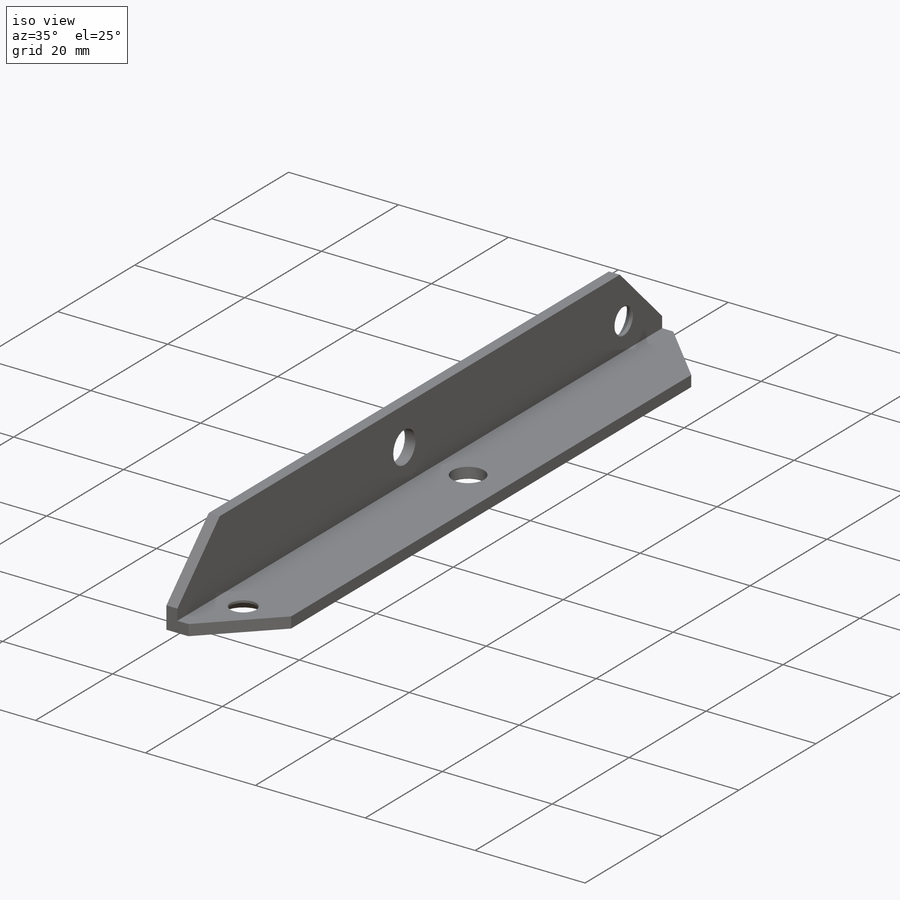
[diagram: iso view]
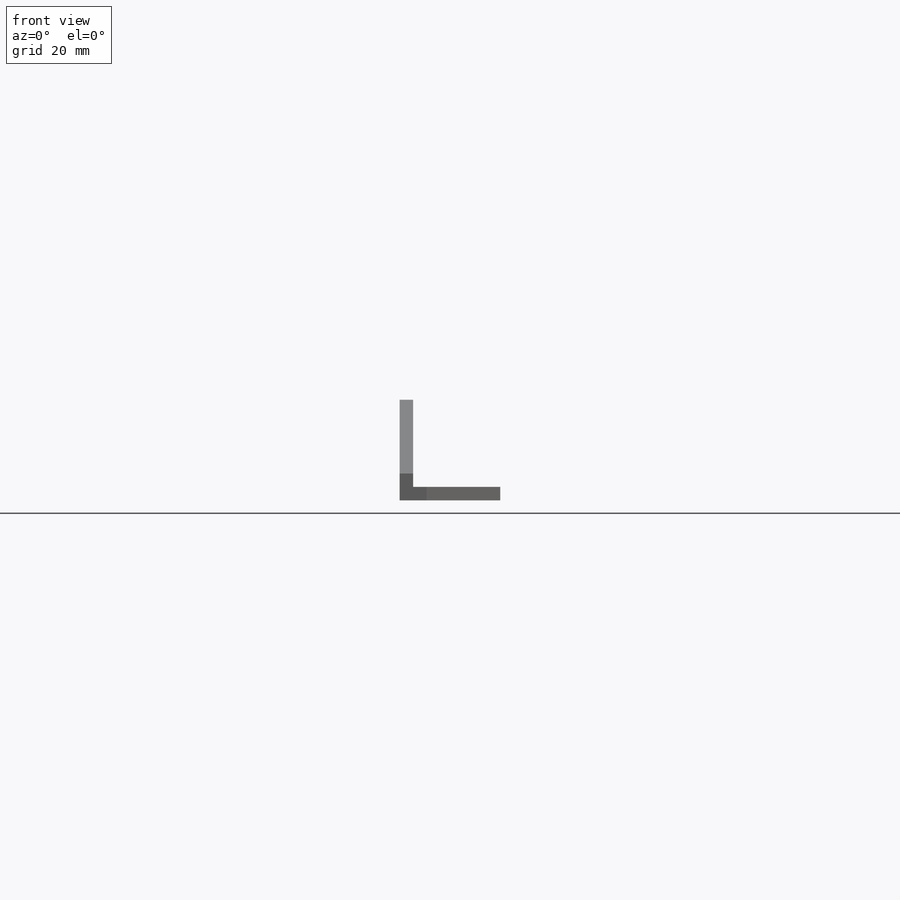
[diagram: front view]
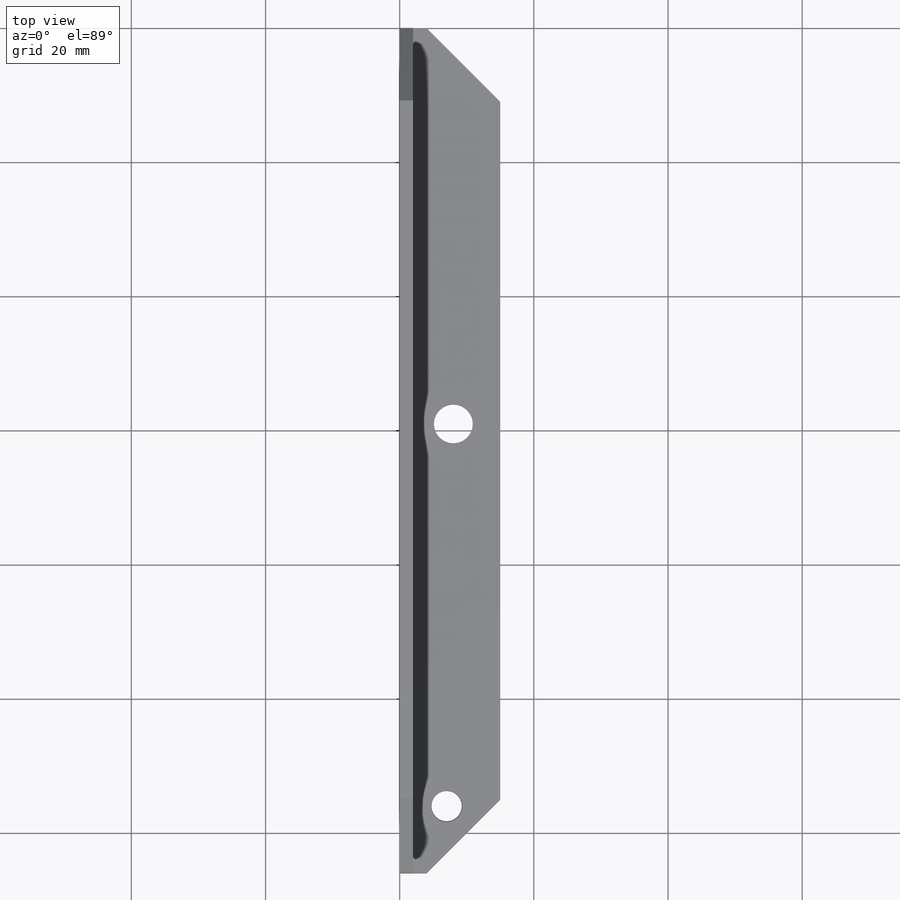
[diagram: top view]
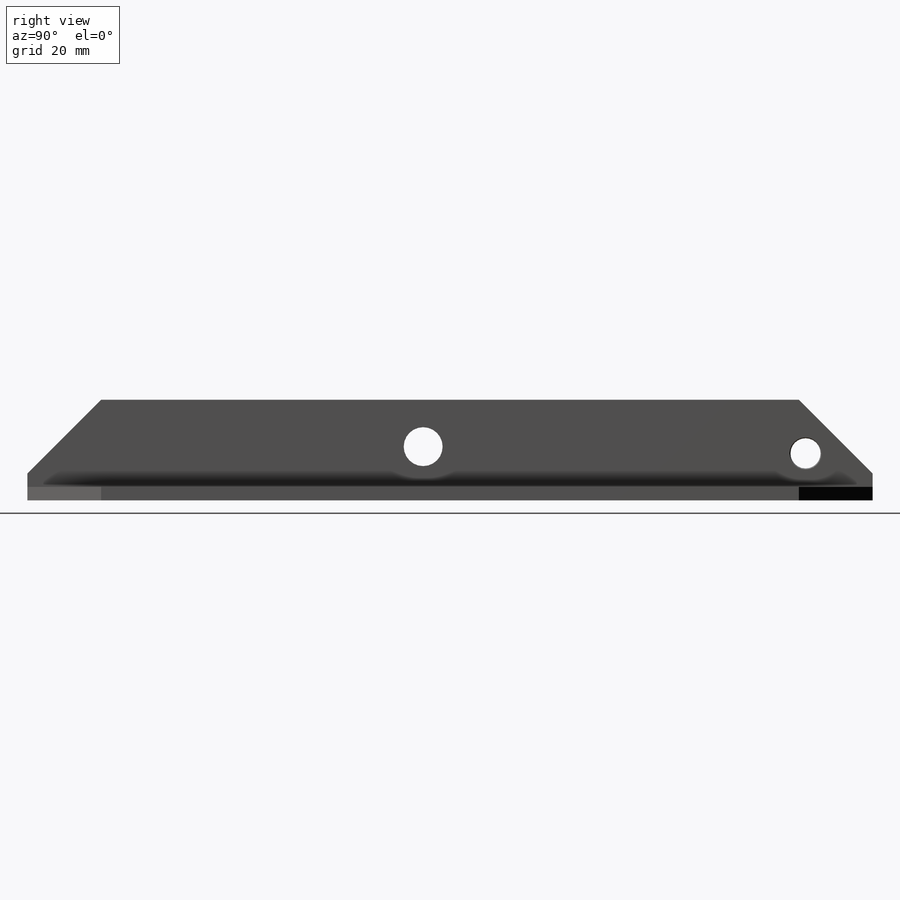
[diagram: right view]
SOLIDWORKS PART (.sldprt)
format: sldprt  version: not decoded by parser v0  size: 275,456 bytes
history: native  units: mm
features: sketch x9, hole x4, plane x3, material x1, extrude x1, chamfer x1 (+13 scaffold rows collapsed)
feature tree (32):
  scaffold x13  (default folders/planes/origin — collapsed)
  material  "Материал <не указан>"
  plane  "Спереди"
  plane  "Сверху"
  plane  "Справа"
  sketch  "Эскиз1"  dims[D1=2.0mm D2=15.0mm]
  extrude  "Бобышка-Вытянуть1"  Depth=126mm
  chamfer  "Фаска1"  Distance=11mm Angle=45deg
  hole  "Зенковка для винта с потайной головкой M41"  [1 undecoded]
  sketch  "Эскиз3"  dims[D1=7.0mm D2=10.0mm]
  sketch  "Эскиз2"  dims[hole-wizard template sketch: 46 standard entries collapsed; hole parameters kept: c15.Диаметр сквозного отверстия=4.5mm c15.Глубина сквозного отверстия=2.0mm c15.Диаметр передней зенковки=7.4mm c15.D4=~3.666174mm c15.Угол передней зенковки=90.0deg c15.Диаметр задней зенковки=4.8mm c15.D6=~9.919017mm c15.Угол задней зенковки=90.0deg]
  hole  "Зенковка для винта с потайной головкой M42"  [1 undecoded]
  sketch  "Эскиз5"  dims[D1=7.0mm D2=10.0mm]
  sketch  "Эскиз4"  dims[hole-wizard template sketch: 46 standard entries collapsed; hole parameters kept: c15.Диаметр сквозного отверстия=4.5mm c15.Глубина сквозного отверстия=2.0mm c15.Диаметр передней зенковки=7.4mm c15.D4=~3.666174mm c15.Угол передней зенковки=90.0deg c15.Диаметр задней зенковки=4.8mm c15.D6=~9.919017mm c15.Угол задней зенковки=90.0deg]
  hole  "Отверстие с зазором M51"  [1 undecoded]
  sketch  "Эскиз7"  dims[D1=57.0mm D2=8.0mm]
  sketch  "Эскиз6"  dims[hole-wizard template sketch: 39 standard entries collapsed; hole parameters kept: c13.Диаметр отверстия=5.8mm c13.Глубина отверстия=3.0mm c13.Диаметр передней зенковки=6.0mm c13.D4=~33.297463mm c13.Угол передней зенковки=90.0deg c14.D5=~14.816244mm c14.Угол заточки сверла=118.0deg]
  hole  "Отверстие с зазором M52"  [1 undecoded]
  sketch  "Эскиз9"  dims[D1=57.0mm D2=8.0mm]
  sketch  "Эскиз8"  dims[hole-wizard template sketch: 39 standard entries collapsed; hole parameters kept: c13.Диаметр отверстия=5.8mm c13.Глубина отверстия=3.0mm c13.Диаметр передней зенковки=6.0mm c13.D4=~33.297463mm c13.Угол передней зенковки=90.0deg c14.D5=~14.816244mm c14.Угол заточки сверла=118.0deg]
decode coverage: 11 of 15 modeling features carry decoded parameters
note: ~ marks probable driven/reference dimensions
note: 4 parameter values undecoded
summary: no parameter record found for 4 features
note: suppression state not decoded; provenance and decode notes live in map.json
